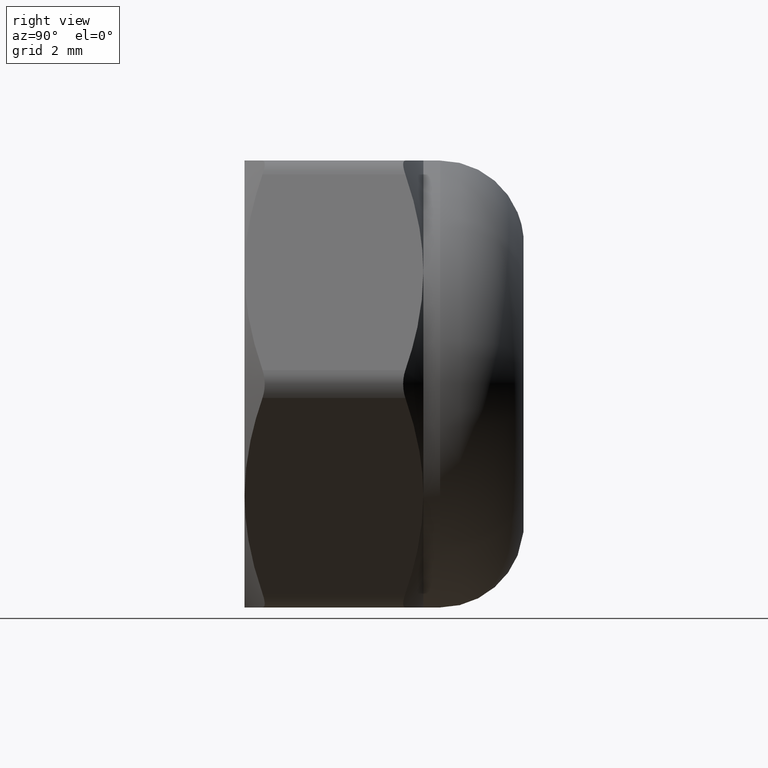
[diagram: clean part render]
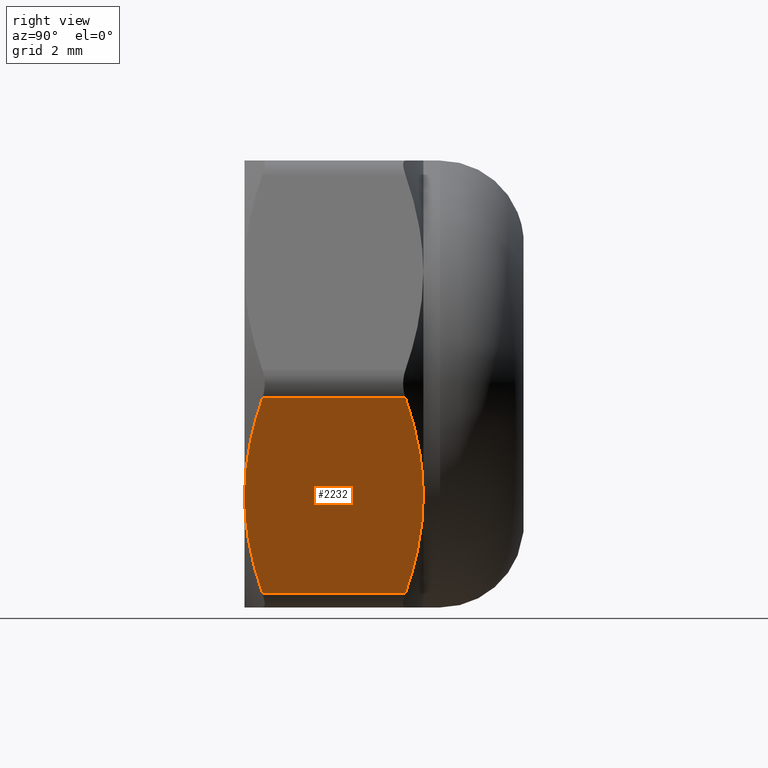
[diagram: same view with one face highlighted and labeled with its STEP entity id]
A machine part, right view. The second image highlights one B-rep face of the part: STEP entity #2232.
In plain terms, the highlighted planar face has unit normal (-0.866, 0, 0.5).
Its self-contained STEP definition (entity closure, byte-faithful):
#599 = VERTEX_POINT ( 'NONE', #14160 ) ;
#790 = CARTESIAN_POINT ( 'NONE',  ( 4.145060249650558859, -1.477079973810897728, -0.8205450471710977745 ) ) ;
#1035 = LINE ( 'NONE', #13830, #11573 ) ;
#1573 = B_SPLINE_CURVE_WITH_KNOTS ( 'NONE', 3,
 ( #11394, #2769, #15142, #8922 ),
 .UNSPECIFIED., .F., .F.,
 ( 4, 4 ),
 ( 0.0002998517042431903608, 0.002345898061757717337 ),
 .UNSPECIFIED. ) ;
#1830 = DIRECTION ( 'NONE',  ( 0.000000000000000000, -1.000000000000000000, 0.000000000000000000 ) ) ;
#2232 = ADVANCED_FACE ( 'NONE', ( #8218 ), #7338, .F. ) ;
#2281 = DIRECTION ( 'NONE',  ( -0.000000000000000000, 1.000000000000000000, -0.000000000000000000 ) ) ;
#2554 = CARTESIAN_POINT ( 'NONE',  ( 3.464101615137754386, 1.600000000000000089, -2.000000000000000888 ) ) ;
#2769 = CARTESIAN_POINT ( 'NONE',  ( 2.783142980624948581, 1.477079973810897728, -3.179454952828903114 ) ) ;
#2998 = VERTEX_POINT ( 'NONE', #6476 ) ;
#3134 = EDGE_CURVE ( 'NONE', #15334, #3475, #13025, .T. ) ;
#3324 = ORIENTED_EDGE ( 'NONE', *, *, #3134, .T. ) ;
#3475 = VERTEX_POINT ( 'NONE', #4724 ) ;
#3489 = B_SPLINE_CURVE_WITH_KNOTS ( 'NONE', 3,
 ( #6960, #790, #15626, #8162 ),
 .UNSPECIFIED., .F., .F.,
 ( 4, 4 ),
 ( 0.0002998517042431907403, 0.002345898061757717770 ),
 .UNSPECIFIED. ) ;
#3530 = CARTESIAN_POINT ( 'NONE',  ( 2.453738644055908580, 1.600000000000000089, -3.749999999999999556 ) ) ;
#3682 = CARTESIAN_POINT ( 'NONE',  ( 4.144497964045229743, 1.458311221253513201, -0.8215189544078913553 ) ) ;
#4601 = EDGE_CURVE ( 'NONE', #3475, #9268, #8547, .T. ) ;
#4660 = CARTESIAN_POINT ( 'NONE',  ( 3.120293610011475760, -1.569631693578380505, -2.595492932927614849 ) ) ;
#4724 = CARTESIAN_POINT ( 'NONE',  ( 2.453738644055907692, -1.279037853389166424, -3.750000000000000888 ) ) ;
#4911 = ORIENTED_EDGE ( 'NONE', *, *, #4601, .T. ) ;
#5154 = EDGE_LOOP ( 'NONE', ( #3324, #4911, #12791, #15401, #8550, #10551 ) ) ;
#5334 = EDGE_CURVE ( 'NONE', #599, #15334, #3489, .T. ) ;
#5909 = CARTESIAN_POINT ( 'NONE',  ( 2.453738644055906359, 1.279037853389187296, -3.750000000000002665 ) ) ;
#6476 = CARTESIAN_POINT ( 'NONE',  ( 3.464101615137754386, 1.600000000000000089, -2.000000000000000888 ) ) ;
#6960 = CARTESIAN_POINT ( 'NONE',  ( 4.474464586219599305, -1.279037853389166868, -0.2500000000000010547 ) ) ;
#7067 = CARTESIAN_POINT ( 'NONE',  ( 2.783705266230276809, -1.458311221253513423, -3.178481045592108867 ) ) ;
#7338 = PLANE ( 'NONE',  #15104 ) ;
#7388 = DIRECTION ( 'NONE',  ( -0.8660254037844385966, 0.000000000000000000, 0.5000000000000003331 ) ) ;
#7518 = CARTESIAN_POINT ( 'NONE',  ( 4.310360692517337000, 1.377699223232564885, -0.5342362816122026015 ) ) ;
#8162 = CARTESIAN_POINT ( 'NONE',  ( 3.464101615137754386, -1.600000000000000089, -2.000000000000000888 ) ) ;
#8218 = FACE_OUTER_BOUND ( 'NONE', #5154, .T. ) ;
#8453 = EDGE_CURVE ( 'NONE', #2998, #15317, #10803, .T. ) ;
#8483 = CARTESIAN_POINT ( 'NONE',  ( 4.474464586219599305, 1.279037853389167090, -0.2500000000000007772 ) ) ;
#8547 = LINE ( 'NONE', #3530, #13047 ) ;
#8550 = ORIENTED_EDGE ( 'NONE', *, *, #15033, .T. ) ;
#8759 = CARTESIAN_POINT ( 'NONE',  ( 4.474464586219599305, 1.279037853389167090, -0.2500000000000007772 ) ) ;
#8922 = CARTESIAN_POINT ( 'NONE',  ( 3.464101615137754386, 1.600000000000000089, -2.000000000000000888 ) ) ;
#9268 = VERTEX_POINT ( 'NONE', #5909 ) ;
#9772 = CARTESIAN_POINT ( 'NONE',  ( 2.453738644055907692, -1.279037853389166424, -3.750000000000000888 ) ) ;
#9955 = CARTESIAN_POINT ( 'NONE',  ( 3.635649695067103782, 1.600000000000048272, -1.702870009621479275 ) ) ;
#10551 = ORIENTED_EDGE ( 'NONE', *, *, #5334, .T. ) ;
#10803 = B_SPLINE_CURVE_WITH_KNOTS ( 'NONE', 3,
 ( #2554, #9955, #11384, #3682, #7518, #8759 ),
 .UNSPECIFIED., .F., .F.,
 ( 4, 2, 4 ),
 ( 0.002345898061757717337, 0.003361912581421083041, 0.004377927101084450046 ),
 .UNSPECIFIED. ) ;
#11085 = DIRECTION ( 'NONE',  ( 0.5000000000000002220, 0.000000000000000000, 0.8660254037844384856 ) ) ;
#11089 = EDGE_CURVE ( 'NONE', #9268, #2998, #1573, .T. ) ;
#11384 = CARTESIAN_POINT ( 'NONE',  ( 3.807909620264031680, 1.569631693578380505, -1.404507067072385817 ) ) ;
#11394 = CARTESIAN_POINT ( 'NONE',  ( 2.453738644055906359, 1.279037853389187296, -3.750000000000002665 ) ) ;
#11573 = VECTOR ( 'NONE', #1830, 1000.000000000000000 ) ;
#12093 = CARTESIAN_POINT ( 'NONE',  ( 3.464101615137754386, -1.600000000000000089, -2.000000000000000888 ) ) ;
#12260 = CARTESIAN_POINT ( 'NONE',  ( 3.292553535208401883, -1.600000000000047384, -2.297129990378521391 ) ) ;
#12791 = ORIENTED_EDGE ( 'NONE', *, *, #11089, .T. ) ;
#13025 = B_SPLINE_CURVE_WITH_KNOTS ( 'NONE', 3,
 ( #12093, #12260, #4660, #7067, #15901, #9772 ),
 .UNSPECIFIED., .F., .F.,
 ( 4, 2, 4 ),
 ( 0.002345898061757717770, 0.003361912581421084342, 0.004377927101084450913 ),
 .UNSPECIFIED. ) ;
#13047 = VECTOR ( 'NONE', #2281, 1000.000000000000000 ) ;
#13600 = CARTESIAN_POINT ( 'NONE',  ( 4.618802153517005848, 1.600000000000000089, -8.245927929233735072E-16 ) ) ;
#13667 = CARTESIAN_POINT ( 'NONE',  ( 3.464101615137754386, -1.600000000000000089, -2.000000000000000888 ) ) ;
#13830 = CARTESIAN_POINT ( 'NONE',  ( 4.474464586219599305, 1.600000000000000089, -0.2500000000000009437 ) ) ;
#14160 = CARTESIAN_POINT ( 'NONE',  ( 4.474464586219599305, -1.279037853389166868, -0.2500000000000010547 ) ) ;
#15033 = EDGE_CURVE ( 'NONE', #15317, #599, #1035, .T. ) ;
#15104 = AXIS2_PLACEMENT_3D ( 'NONE', #13600, #7388, #11085 ) ;
#15142 = CARTESIAN_POINT ( 'NONE',  ( 3.118638713491068248, 1.600000000000046496, -2.598359297782228516 ) ) ;
#15317 = VERTEX_POINT ( 'NONE', #8483 ) ;
#15334 = VERTEX_POINT ( 'NONE', #13667 ) ;
#15401 = ORIENTED_EDGE ( 'NONE', *, *, #8453, .T. ) ;
#15626 = CARTESIAN_POINT ( 'NONE',  ( 3.809564516784438304, -1.600000000000046496, -1.401640702217772150 ) ) ;
#15901 = CARTESIAN_POINT ( 'NONE',  ( 2.617842537758169996, -1.377699223232564885, -3.465763718387798953 ) ) ;